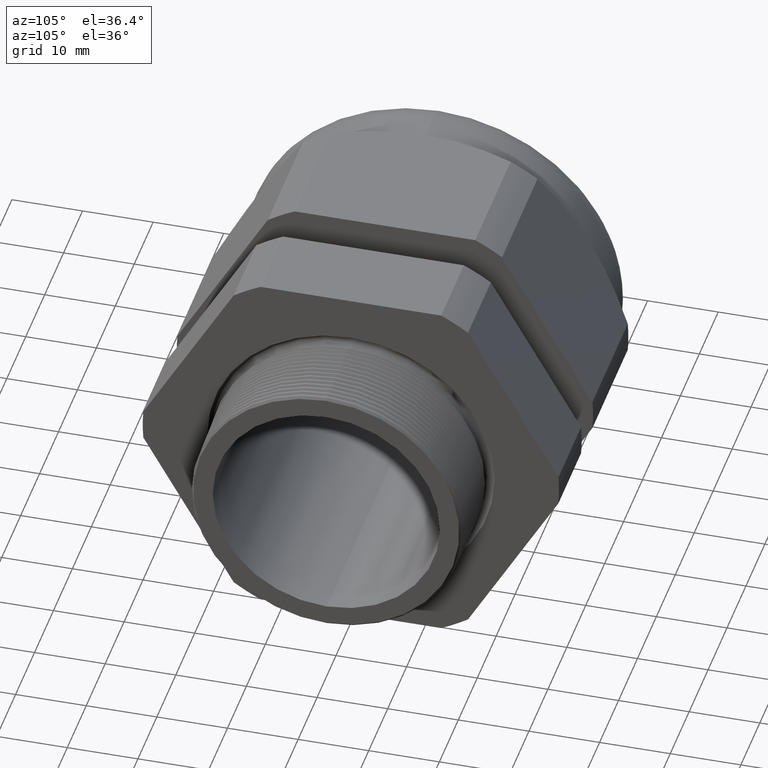
[diagram: clean part render]
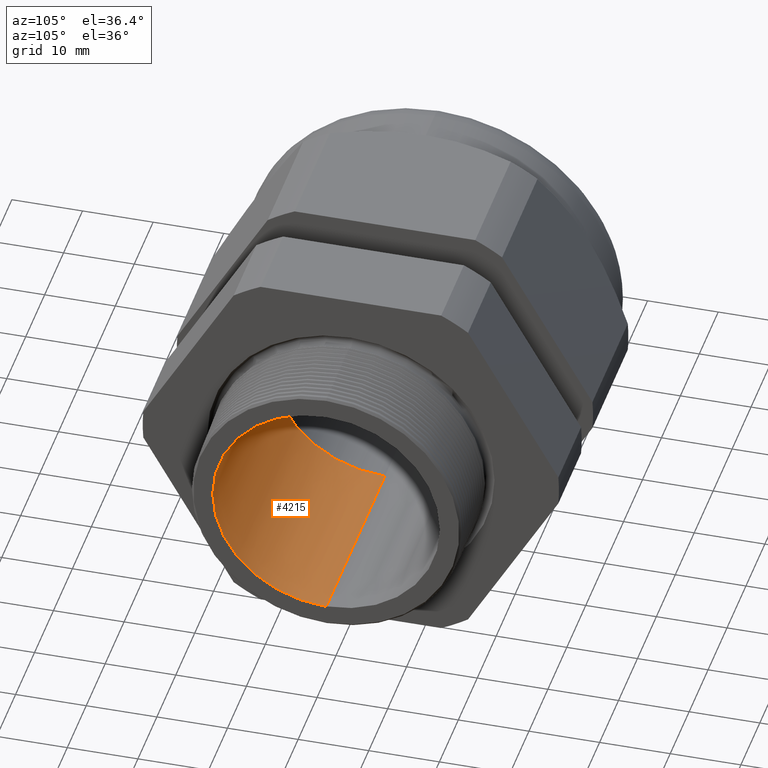
[diagram: same view with one face highlighted and labeled with its STEP entity id]
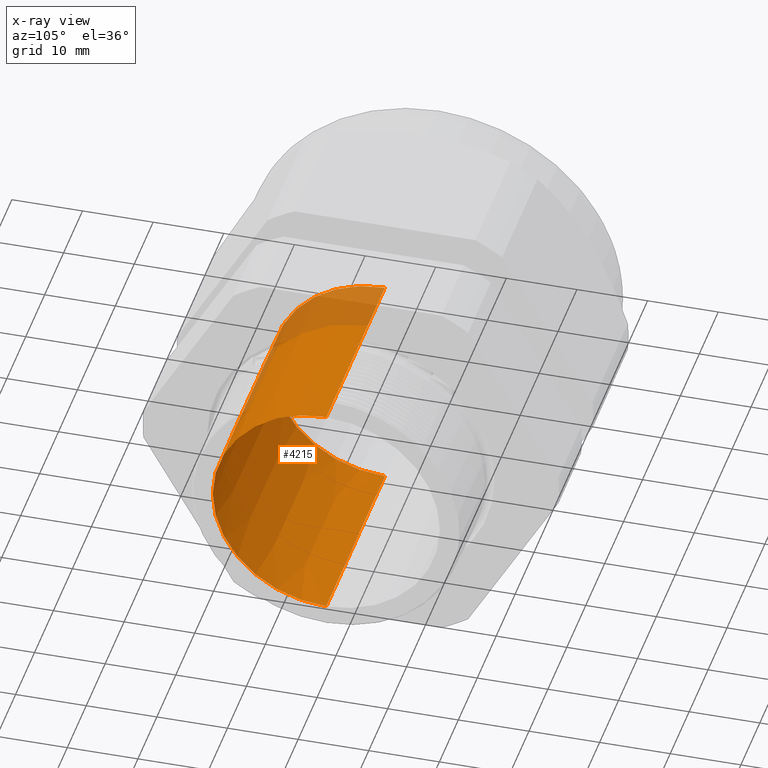
[diagram: x-ray of the same camera — body ghosted, the highlighted face saturated]
A machine part, auxiliary view. The second image highlights one B-rep face of the part: STEP entity #4215.
The next image is the same camera in x-ray: the body ghosted, the highlighted face saturated — about 11% of this face is hidden behind the body in this view.
In plain terms, the highlighted conical surface has half-angle 0.145 deg.
Its self-contained STEP definition (entity closure, byte-faithful):
#2143 = CARTESIAN_POINT ( 'NONE',  ( -1.018802799999999800, 7.715274834628325400E-017, 0.6300000000000000000 ) ) ;
#2144 = CARTESIAN_POINT ( 'NONE',  ( -1.018802799999999800, 0.0000000000000000000, -0.6300000000000000000 ) ) ;
#2180 = FACE_OUTER_BOUND ( 'NONE', #4175, .T. ) ;
#2185 = CARTESIAN_POINT ( 'NONE',  ( -1.018802799999999800, 0.0000000000000000000, 0.0000000000000000000 ) ) ;
#2193 = DIRECTION ( 'NONE',  ( 0.0000000000000000000, 0.0000000000000000000, -1.000000000000000000 ) ) ;
#2194 = DIRECTION ( 'NONE',  ( 1.000000000000000000, 0.0000000000000000000, 0.0000000000000000000 ) ) ;
#2195 = AXIS2_PLACEMENT_3D ( 'NONE', #2200, #2194, #2193 ) ;
#2196 = CIRCLE ( 'NONE', #2195, 0.6300000000000000000 ) ;
#2200 = CARTESIAN_POINT ( 'NONE',  ( -1.018802799999999800, 0.0000000000000000000, 0.0000000000000000000 ) ) ;
#2242 = DIRECTION ( 'NONE',  ( 0.0000000000000000000, 0.0000000000000000000, -1.000000000000000000 ) ) ;
#2243 = DIRECTION ( 'NONE',  ( 1.000000000000000000, 0.0000000000000000000, 0.0000000000000000000 ) ) ;
#2244 = AXIS2_PLACEMENT_3D ( 'NONE', #2185, #2243, #2242 ) ;
#2245 = CONICAL_SURFACE ( 'NONE', #2244, 0.6300000000000000000, 0.002530777649680375600 ) ;
#2293 = DIRECTION ( 'NONE',  ( 0.9999967975839531000, 0.0000000000000000000, -0.002530774948145480100 ) ) ;
#2294 = VECTOR ( 'NONE', #2293, 39.37007874015748100 ) ;
#2295 = CARTESIAN_POINT ( 'NONE',  ( -1.018802799999999800, 0.0000000000000000000, -0.6300000000000000000 ) ) ;
#2300 = LINE ( 'NONE', #2295, #2294 ) ;
#2563 = DIRECTION ( 'NONE',  ( 0.9999967975839531000, 3.099305439608670900E-019, 0.002530774948145480100 ) ) ;
#2564 = CARTESIAN_POINT ( 'NONE',  ( -1.018802799999999800, 7.715274834628325400E-017, 0.6300000000000000000 ) ) ;
#2565 = LINE ( 'NONE', #2564, #2624 ) ;
#2594 = CARTESIAN_POINT ( 'NONE',  ( 0.2000000000000000400, 0.0000000000000000000, 0.0000000000000000000 ) ) ;
#2597 = CARTESIAN_POINT ( 'NONE',  ( 0.2000000000000000400, 0.0000000000000000000, -0.6330845254709034400 ) ) ;
#2623 = CARTESIAN_POINT ( 'NONE',  ( 0.2000000000000000400, 7.753049377076629200E-017, 0.6330845254709034400 ) ) ;
#2624 = VECTOR ( 'NONE', #2563, 39.37007874015748100 ) ;
#2650 = DIRECTION ( 'NONE',  ( 0.0000000000000000000, 0.0000000000000000000, -1.000000000000000000 ) ) ;
#2651 = DIRECTION ( 'NONE',  ( 1.000000000000000000, 0.0000000000000000000, 0.0000000000000000000 ) ) ;
#2652 = AXIS2_PLACEMENT_3D ( 'NONE', #2594, #2651, #2650 ) ;
#2653 = CIRCLE ( 'NONE', #2652, 0.6330845254709034400 ) ;
#4050 = ORIENTED_EDGE ( 'NONE', *, *, #4258, .F. ) ;
#4150 = VERTEX_POINT ( 'NONE', #2144 ) ;
#4152 = VERTEX_POINT ( 'NONE', #2143 ) ;
#4169 = ORIENTED_EDGE ( 'NONE', *, *, #4204, .F. ) ;
#4175 = EDGE_LOOP ( 'NONE', ( #4169, #4256, #4437, #4050 ) ) ;
#4204 = EDGE_CURVE ( 'NONE', #4152, #4150, #2196, .T. ) ;
#4215 = ADVANCED_FACE ( 'NONE', ( #2180 ), #2245, .F. ) ;
#4256 = ORIENTED_EDGE ( 'NONE', *, *, #4423, .T. ) ;
#4258 = EDGE_CURVE ( 'NONE', #4150, #4439, #2300, .T. ) ;
#4423 = EDGE_CURVE ( 'NONE', #4152, #4425, #2565, .T. ) ;
#4425 = VERTEX_POINT ( 'NONE', #2623 ) ;
#4437 = ORIENTED_EDGE ( 'NONE', *, *, #4443, .T. ) ;
#4439 = VERTEX_POINT ( 'NONE', #2597 ) ;
#4443 = EDGE_CURVE ( 'NONE', #4425, #4439, #2653, .T. ) ;